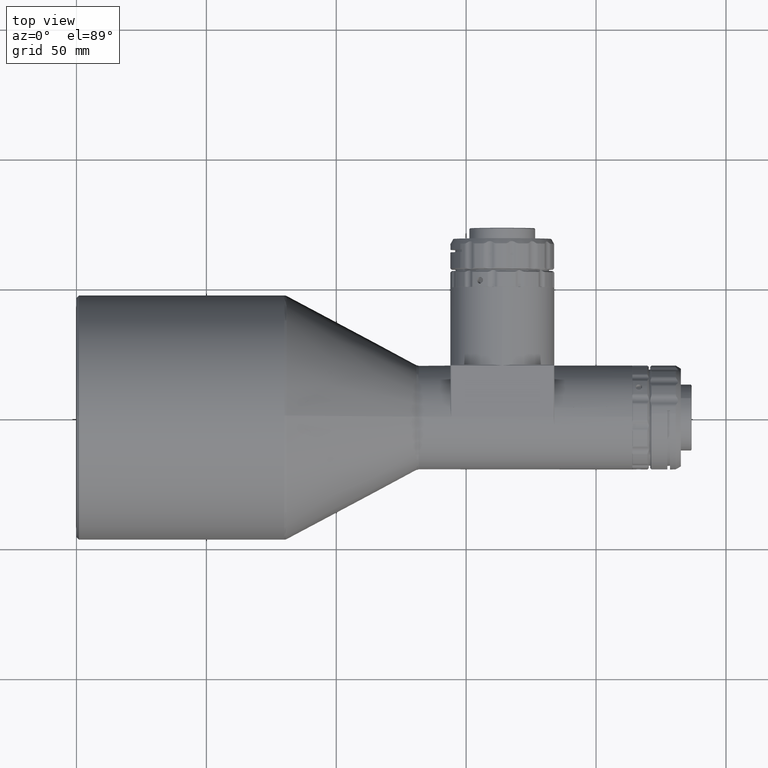
[diagram: clean part render]
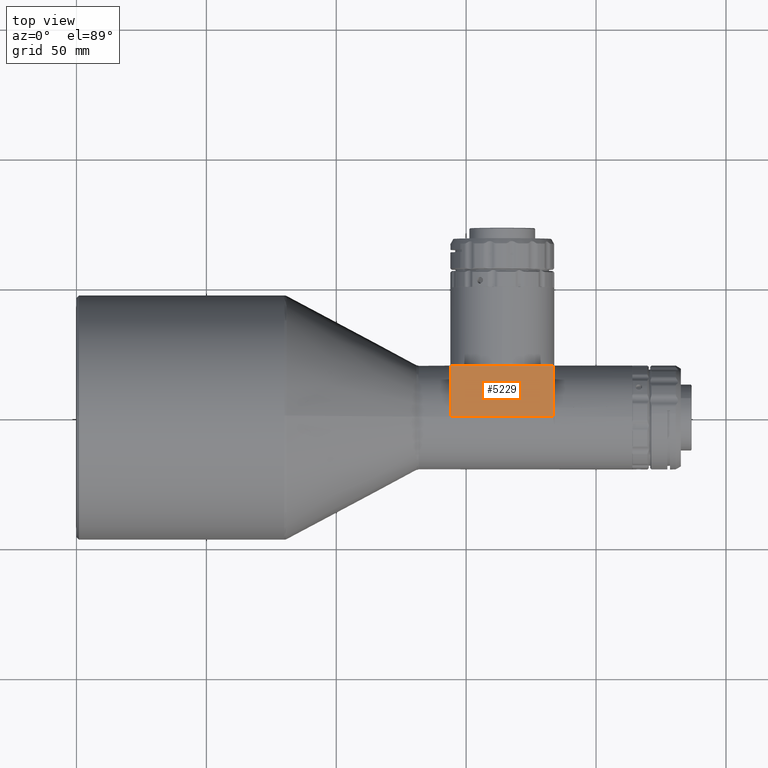
[diagram: same view with one face highlighted and labeled with its STEP entity id]
A machine part, top view. The second image highlights one B-rep face of the part: STEP entity #5229.
In plain terms, the highlighted planar face has unit normal (0, 0, 1).
Its self-contained STEP definition (entity closure, byte-faithful):
#18 = EDGE_CURVE ( 'NONE', #4745, #5698, #1727, .T. ) ;
#262 = CARTESIAN_POINT ( 'NONE',  ( 144.2099999999999800, 9.849999999999999600, 20.00000000000000000 ) ) ;
#1351 = VERTEX_POINT ( 'NONE', #8742 ) ;
#1727 = LINE ( 'NONE', #8329, #10224 ) ;
#1732 = CARTESIAN_POINT ( 'NONE',  ( 163.9100000000000000, 0.0000000000000000000, 20.00000000000000000 ) ) ;
#1765 = ORIENTED_EDGE ( 'NONE', *, *, #5949, .T. ) ;
#2282 = VERTEX_POINT ( 'NONE', #3266 ) ;
#2635 = ORIENTED_EDGE ( 'NONE', *, *, #9427, .T. ) ;
#3109 = CARTESIAN_POINT ( 'NONE',  ( 163.9100000000000000, 19.69999999999999900, 20.00000000000000000 ) ) ;
#3266 = CARTESIAN_POINT ( 'NONE',  ( 183.6099999999999900, 0.0000000000000000000, 20.00000000000000400 ) ) ;
#3694 = VECTOR ( 'NONE', #10525, 1000.000000000000000 ) ;
#3834 = LINE ( 'NONE', #1732, #13557 ) ;
#3851 = FACE_OUTER_BOUND ( 'NONE', #12499, .T. ) ;
#4391 = LINE ( 'NONE', #262, #3694 ) ;
#4568 = CARTESIAN_POINT ( 'NONE',  ( 144.2099999999906900, 19.69999999999999900, 20.00000000000000000 ) ) ;
#4680 = DIRECTION ( 'NONE',  ( 0.0000000000000000000, 1.000000000000000000, 0.0000000000000000000 ) ) ;
#4745 = VERTEX_POINT ( 'NONE', #7380 ) ;
#4774 = EDGE_CURVE ( 'NONE', #1351, #4745, #12022, .T. ) ;
#4900 = VECTOR ( 'NONE', #11774, 1000.000000000000000 ) ;
#5229 = ADVANCED_FACE ( 'NONE', ( #3851 ), #5640, .T. ) ;
#5241 = EDGE_CURVE ( 'NONE', #5698, #10240, #4391, .T. ) ;
#5554 = AXIS2_PLACEMENT_3D ( 'NONE', #6765, #8967, #10143 ) ;
#5640 = PLANE ( 'NONE',  #5554 ) ;
#5698 = VERTEX_POINT ( 'NONE', #4568 ) ;
#5949 = EDGE_CURVE ( 'NONE', #10240, #2282, #3834, .T. ) ;
#6140 = VECTOR ( 'NONE', #4680, 1000.000000000000000 ) ;
#6765 = CARTESIAN_POINT ( 'NONE',  ( 144.2099999999999800, 0.0000000000000000000, 20.00000000000000000 ) ) ;
#7027 = CARTESIAN_POINT ( 'NONE',  ( 183.6099999999999900, 9.849999999999999600, 20.00000000000000000 ) ) ;
#7206 = ORIENTED_EDGE ( 'NONE', *, *, #18, .T. ) ;
#7380 = CARTESIAN_POINT ( 'NONE',  ( 163.9100000000000000, 19.70000000000000600, 19.99999999999999300 ) ) ;
#8191 = CARTESIAN_POINT ( 'NONE',  ( 144.2099999984238300, 0.0000000000000000000, 20.00000000000000000 ) ) ;
#8329 = CARTESIAN_POINT ( 'NONE',  ( 163.9100000000000000, 19.69999999999999900, 20.00000000000000000 ) ) ;
#8386 = DIRECTION ( 'NONE',  ( -1.000000000000000000, -0.0000000000000000000, -0.0000000000000000000 ) ) ;
#8429 = DIRECTION ( 'NONE',  ( 1.000000000000000000, 0.0000000000000000000, 0.0000000000000000000 ) ) ;
#8742 = CARTESIAN_POINT ( 'NONE',  ( 183.6100000000186000, 19.69999999999999900, 19.99999999998140500 ) ) ;
#8967 = DIRECTION ( 'NONE',  ( 0.0000000000000000000, 0.0000000000000000000, 1.000000000000000000 ) ) ;
#9427 = EDGE_CURVE ( 'NONE', #2282, #1351, #11868, .T. ) ;
#10143 = DIRECTION ( 'NONE',  ( 1.000000000000000000, 0.0000000000000000000, 0.0000000000000000000 ) ) ;
#10224 = VECTOR ( 'NONE', #8386, 1000.000000000000000 ) ;
#10240 = VERTEX_POINT ( 'NONE', #8191 ) ;
#10525 = DIRECTION ( 'NONE',  ( -0.0000000000000000000, -1.000000000000000000, -0.0000000000000000000 ) ) ;
#11546 = ORIENTED_EDGE ( 'NONE', *, *, #5241, .T. ) ;
#11774 = DIRECTION ( 'NONE',  ( -1.000000000000000000, -0.0000000000000000000, -0.0000000000000000000 ) ) ;
#11868 = LINE ( 'NONE', #7027, #6140 ) ;
#12022 = LINE ( 'NONE', #3109, #4900 ) ;
#12499 = EDGE_LOOP ( 'NONE', ( #1765, #2635, #13330, #7206, #11546 ) ) ;
#13330 = ORIENTED_EDGE ( 'NONE', *, *, #4774, .T. ) ;
#13557 = VECTOR ( 'NONE', #8429, 1000.000000000000000 ) ;